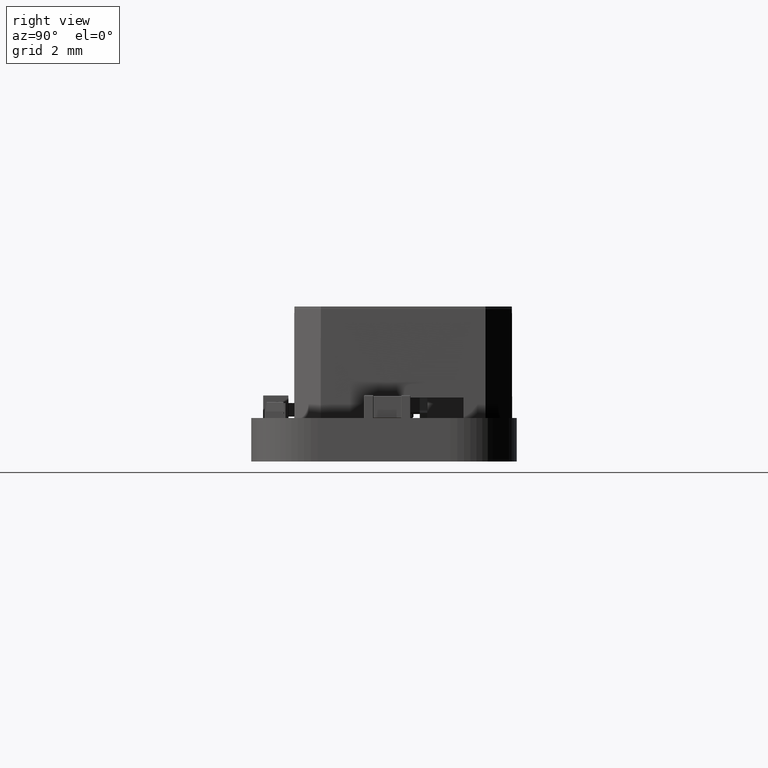
[diagram: clean part render]
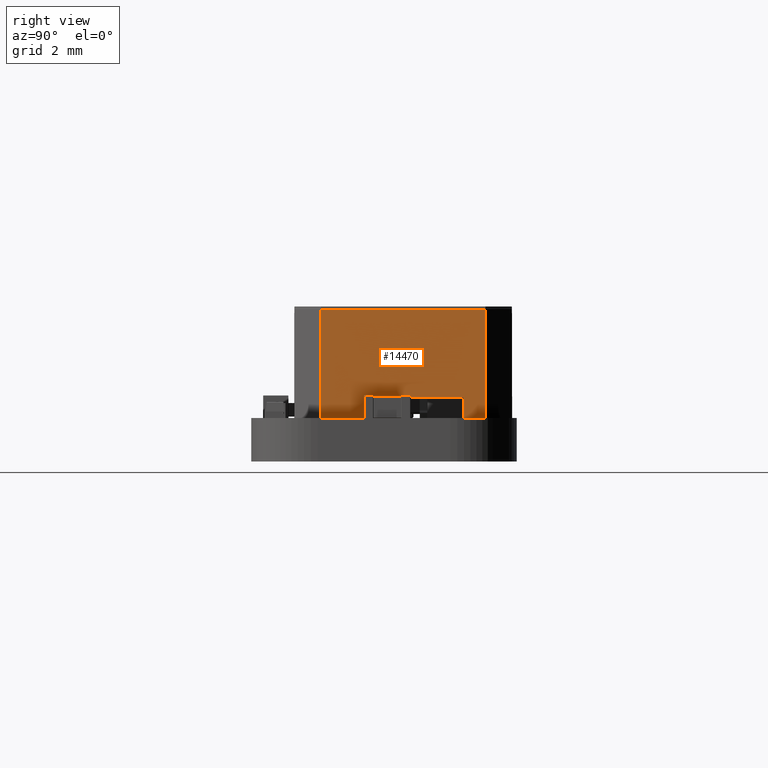
[diagram: same view with one face highlighted and labeled with its STEP entity id]
A machine part, right view. The second image highlights one B-rep face of the part: STEP entity #14470.
In plain terms, the highlighted planar face has unit normal (-1, -0, -0).
Its self-contained STEP definition (entity closure, byte-faithful):
#13176 = VERTEX_POINT('',#13177);
#13177 = CARTESIAN_POINT('',(-3.101344042622,4.100007783922,
    -4.097904499348));
#13201 = EDGE_CURVE('',#13176,#13202,#13204,.T.);
#13202 = VERTEX_POINT('',#13203);
#13203 = CARTESIAN_POINT('',(3.10050271597,4.1,-4.098171292452));
#13204 = B_SPLINE_CURVE_WITH_KNOTS('',3,(#13205,#13206,#13207,#13208),
  .UNSPECIFIED.,.F.,.F.,(4,4),(0.,1.),.PIECEWISE_BEZIER_KNOTS.);
#13205 = CARTESIAN_POINT('',(-3.101344042622,4.100007783922,
    -4.097904499348));
#13206 = CARTESIAN_POINT('',(-1.034821488698,4.1,-4.103));
#13207 = CARTESIAN_POINT('',(1.031285954792,4.1,-4.103));
#13208 = CARTESIAN_POINT('',(3.10050271597,4.1,-4.098171292452));
#14470 = ADVANCED_FACE('',(#14471),#14530,.F.);
#14471 = FACE_BOUND('',#14472,.T.);
#14472 = EDGE_LOOP('',(#14473,#14483,#14491,#14499,#14506,#14507,#14516,
    #14524));
#14473 = ORIENTED_EDGE('',*,*,#14474,.F.);
#14474 = EDGE_CURVE('',#14475,#14477,#14479,.T.);
#14475 = VERTEX_POINT('',#14476);
#14476 = CARTESIAN_POINT('',(-2.263,0.76,-4.103));
#14477 = VERTEX_POINT('',#14478);
#14478 = CARTESIAN_POINT('',(0.913,0.76,-4.103));
#14479 = LINE('',#14480,#14481);
#14480 = CARTESIAN_POINT('',(-4.103,0.76,-4.103));
#14481 = VECTOR('',#14482,1.);
#14482 = DIRECTION('',(1.,0.,-0.));
#14483 = ORIENTED_EDGE('',*,*,#14484,.F.);
#14484 = EDGE_CURVE('',#14485,#14475,#14487,.T.);
#14485 = VERTEX_POINT('',#14486);
#14486 = CARTESIAN_POINT('',(-2.263,0.,-4.103));
#14487 = LINE('',#14488,#14489);
#14488 = CARTESIAN_POINT('',(-2.263,4.1,-4.103));
#14489 = VECTOR('',#14490,1.);
#14490 = DIRECTION('',(-0.,1.,0.));
#14491 = ORIENTED_EDGE('',*,*,#14492,.T.);
#14492 = EDGE_CURVE('',#14485,#14493,#14495,.T.);
#14493 = VERTEX_POINT('',#14494);
#14494 = CARTESIAN_POINT('',(-3.103,0.,-4.103));
#14495 = LINE('',#14496,#14497);
#14496 = CARTESIAN_POINT('',(4.103,0.,-4.103));
#14497 = VECTOR('',#14498,1.);
#14498 = DIRECTION('',(-1.,-0.,0.));
#14499 = ORIENTED_EDGE('',*,*,#14500,.F.);
#14500 = EDGE_CURVE('',#13176,#14493,#14501,.T.);
#14501 = B_SPLINE_CURVE_WITH_KNOTS('',3,(#14502,#14503,#14504,#14505),
  .UNSPECIFIED.,.F.,.F.,(4,4),(0.,1.),.PIECEWISE_BEZIER_KNOTS.);
#14502 = CARTESIAN_POINT('',(-3.101344042622,4.100007783922,
    -4.097904499348));
#14503 = CARTESIAN_POINT('',(-3.102309644063,2.733333333333,
    -4.103690355937));
#14504 = CARTESIAN_POINT('',(-3.102654822031,1.366666666667,
    -4.103345177969));
#14505 = CARTESIAN_POINT('',(-3.103,0.,-4.103));
#14506 = ORIENTED_EDGE('',*,*,#13201,.T.);
#14507 = ORIENTED_EDGE('',*,*,#14508,.F.);
#14508 = EDGE_CURVE('',#14509,#13202,#14511,.T.);
#14509 = VERTEX_POINT('',#14510);
#14510 = CARTESIAN_POINT('',(3.103,0.,-4.103));
#14511 = B_SPLINE_CURVE_WITH_KNOTS('',3,(#14512,#14513,#14514,#14515),
  .UNSPECIFIED.,.F.,.F.,(4,4),(0.,1.),.PIECEWISE_BEZIER_KNOTS.);
#14512 = CARTESIAN_POINT('',(3.103,0.,-4.103));
#14513 = CARTESIAN_POINT('',(3.102654822031,1.366666666667,
    -4.103345177969));
#14514 = CARTESIAN_POINT('',(3.102309644063,2.733333333333,
    -4.103690355937));
#14515 = CARTESIAN_POINT('',(3.10050271597,4.1,-4.098171292452));
#14516 = ORIENTED_EDGE('',*,*,#14517,.F.);
#14517 = EDGE_CURVE('',#14518,#14509,#14520,.T.);
#14518 = VERTEX_POINT('',#14519);
#14519 = CARTESIAN_POINT('',(0.913,0.,-4.103));
#14520 = LINE('',#14521,#14522);
#14521 = CARTESIAN_POINT('',(-4.103,0.,-4.103));
#14522 = VECTOR('',#14523,1.);
#14523 = DIRECTION('',(1.,0.,-0.));
#14524 = ORIENTED_EDGE('',*,*,#14525,.F.);
#14525 = EDGE_CURVE('',#14477,#14518,#14526,.T.);
#14526 = LINE('',#14527,#14528);
#14527 = CARTESIAN_POINT('',(0.913,4.1,-4.103));
#14528 = VECTOR('',#14529,1.);
#14529 = DIRECTION('',(0.,-1.,-0.));
#14530 = PLANE('',#14531);
#14531 = AXIS2_PLACEMENT_3D('',#14532,#14533,#14534);
#14532 = CARTESIAN_POINT('',(-4.103,4.1,-4.103));
#14533 = DIRECTION('',(0.,0.,1.));
#14534 = DIRECTION('',(1.,0.,-0.));